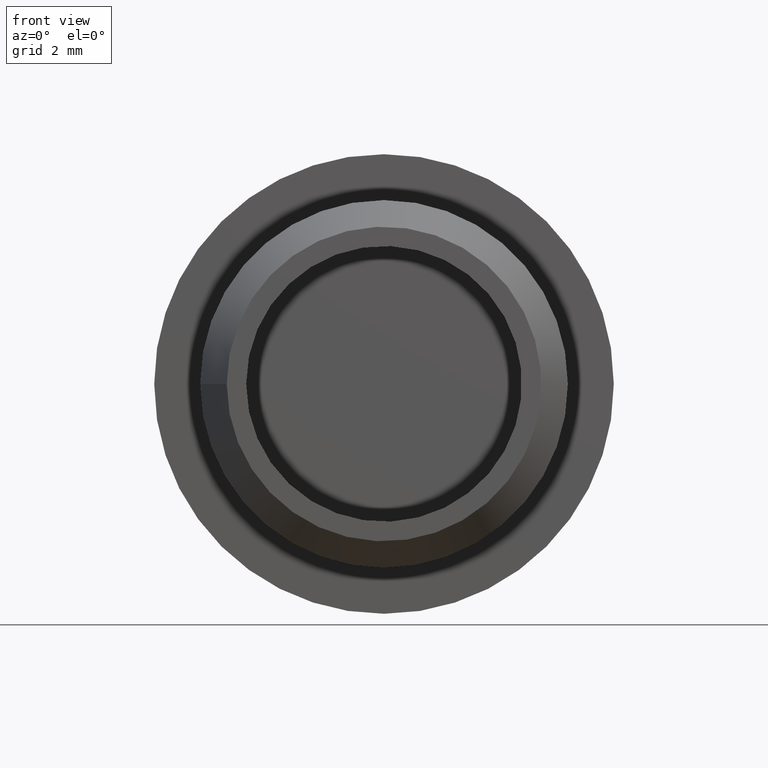
[diagram: clean part render]
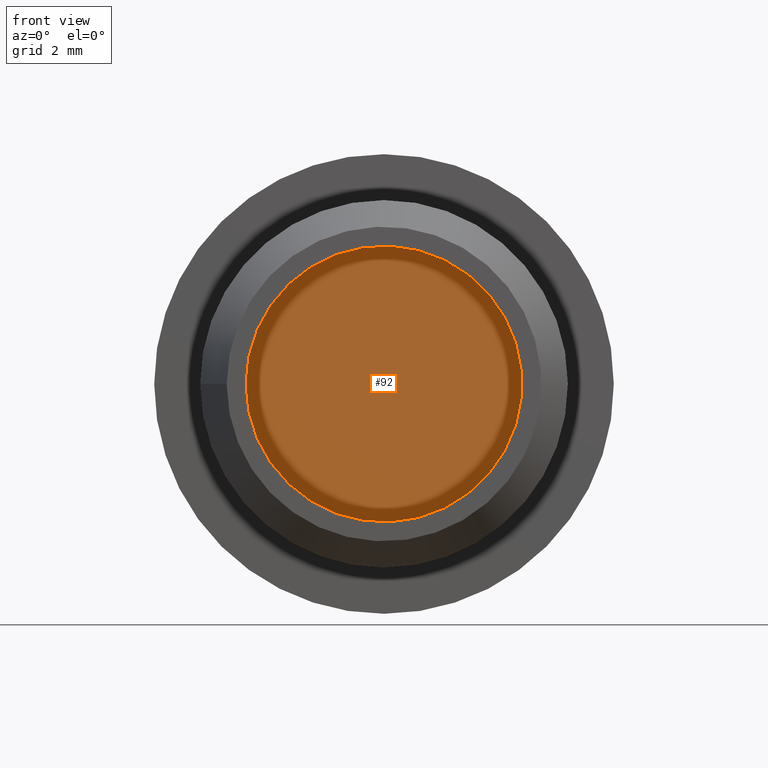
[diagram: same view with one face highlighted and labeled with its STEP entity id]
A machine part, front view. The second image highlights one B-rep face of the part: STEP entity #92.
In plain terms, the highlighted planar face has unit normal (0, -1, 0).
Its self-contained STEP definition (entity closure, byte-faithful):
#21=PLANE('',#108);
#34=FACE_OUTER_BOUND('',#47,.T.);
#47=EDGE_LOOP('',(#82));
#56=CIRCLE('',#109,3.);
#63=VERTEX_POINT('',#163);
#70=EDGE_CURVE('',#63,#63,#56,.T.);
#82=ORIENTED_EDGE('',*,*,#70,.F.);
#92=ADVANCED_FACE('',(#34),#21,.T.);
#108=AXIS2_PLACEMENT_3D('',#162,#137,#138);
#109=AXIS2_PLACEMENT_3D('',#164,#139,#140);
#137=DIRECTION('center_axis',(0.,-1.,0.));
#138=DIRECTION('ref_axis',(0.,0.,-1.));
#139=DIRECTION('center_axis',(0.,1.,0.));
#140=DIRECTION('ref_axis',(1.,0.,0.));
#162=CARTESIAN_POINT('Origin',(-3.,6.5,0.));
#163=CARTESIAN_POINT('',(-3.,6.5,0.));
#164=CARTESIAN_POINT('Origin',(0.,6.5,0.));